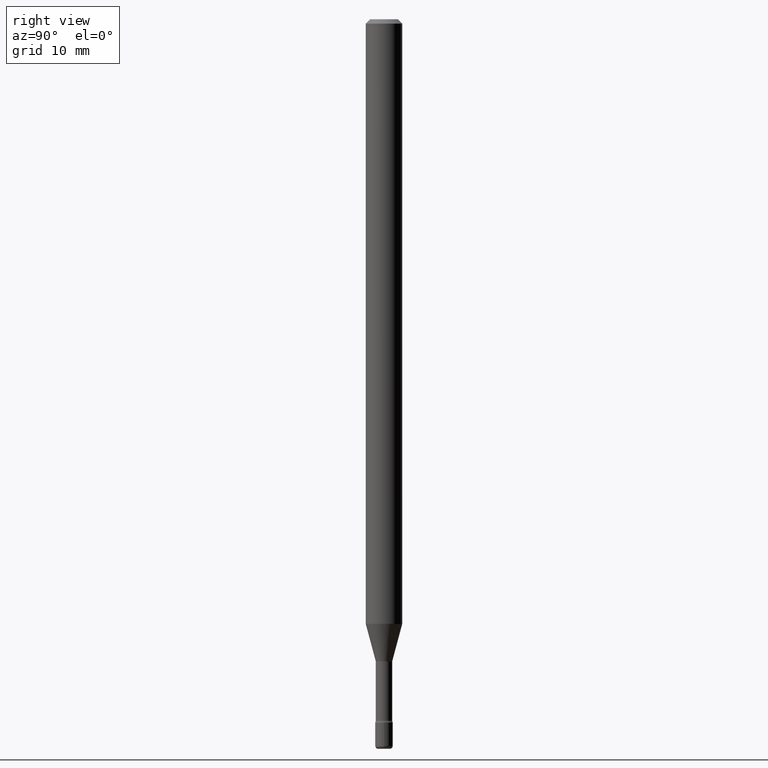
[diagram: clean part render]
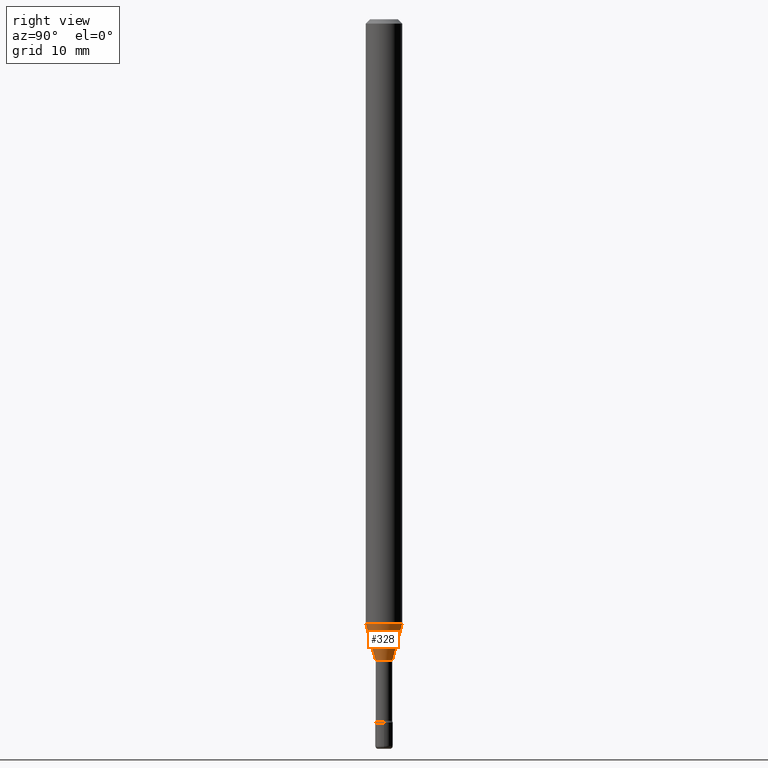
[diagram: same view with one face highlighted and labeled with its STEP entity id]
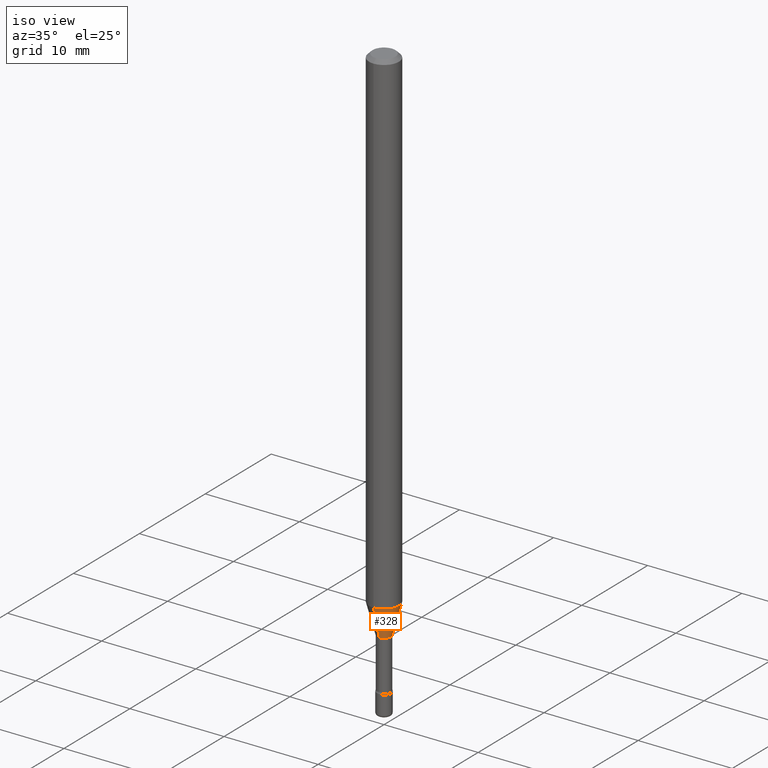
[diagram: same view with one face highlighted and labeled with its STEP entity id]
A machine part, right view. The second image highlights one B-rep face of the part: STEP entity #328.
A second angle (iso view) of the same face is appended — the face is thin or edge-on in the first view.
In plain terms, the highlighted conical surface has half-angle 15 deg.
Its self-contained STEP definition (entity closure, byte-faithful):
#2 = DIRECTION ( 'NONE',  ( -1.807323732225328562E-15, -0.2588190451025179639, 0.9659258262890690894 ) ) ;
#7 = CARTESIAN_POINT ( 'NONE',  ( -2.004886277601455257E-16, -0.02871111260567165910, -2.198092501787273001 ) ) ;
#9 = CONICAL_SURFACE ( 'NONE', #332, 0.02871111260566398468, 0.2617993877991500740 ) ;
#13 = VERTEX_POINT ( 'NONE', #97 ) ;
#39 = EDGE_CURVE ( 'NONE', #13, #548, #496, .T. ) ;
#49 = ORIENTED_EDGE ( 'NONE', *, *, #358, .T. ) ;
#57 = AXIS2_PLACEMENT_3D ( 'NONE', #422, #201, #166 ) ;
#63 = CARTESIAN_POINT ( 'NONE',  ( -4.364351673553412809E-16, -0.06250000000000725808, -2.071990657300387451 ) ) ;
#95 = VECTOR ( 'NONE', #2, 39.37007874015748854 ) ;
#97 = CARTESIAN_POINT ( 'NONE',  ( -2.004886277601455257E-16, -0.02871111260567165910, -2.198092501787273001 ) ) ;
#129 = DIRECTION ( 'NONE',  ( -2.445494318149261734E-29, 3.491444804258467311E-15, 1.000000000000000000 ) ) ;
#135 = CARTESIAN_POINT ( 'NONE',  ( 4.440892098501130047E-16, 0.06249999999999274886, -2.071990657300387895 ) ) ;
#147 = CARTESIAN_POINT ( 'NONE',  ( 3.240469674128075134E-16, 0.02871111260565631026, -2.198092501787273001 ) ) ;
#149 = AXIS2_PLACEMENT_3D ( 'NONE', #477, #433, #214 ) ;
#166 = DIRECTION ( 'NONE',  ( -6.982962677686265922E-15, -1.000000000000000000, 4.370956789862821150E-15 ) ) ;
#180 = LINE ( 'NONE', #475, #411 ) ;
#196 = ORIENTED_EDGE ( 'NONE', *, *, #342, .F. ) ;
#201 = DIRECTION ( 'NONE',  ( -2.445494318149261734E-29, 3.491444804258467311E-15, 1.000000000000000000 ) ) ;
#214 = DIRECTION ( 'NONE',  ( -6.982962677686265133E-15, -1.000000000000000000, 0.000000000000000000 ) ) ;
#260 = ORIENTED_EDGE ( 'NONE', *, *, #39, .F. ) ;
#303 = DIRECTION ( 'NONE',  ( 1.839019923739598738E-15, 0.2588190451025247363, 0.9659258262890673130 ) ) ;
#328 = ADVANCED_FACE ( 'NONE', ( #336 ), #9, .T. ) ;
#332 = AXIS2_PLACEMENT_3D ( 'NONE', #468, #129, #417 ) ;
#336 = FACE_OUTER_BOUND ( 'NONE', #455, .T. ) ;
#342 = EDGE_CURVE ( 'NONE', #548, #515, #517, .T. ) ;
#358 = EDGE_CURVE ( 'NONE', #552, #515, #180, .T. ) ;
#374 = ORIENTED_EDGE ( 'NONE', *, *, #504, .T. ) ;
#411 = VECTOR ( 'NONE', #303, 39.37007874015748854 ) ;
#417 = DIRECTION ( 'NONE',  ( -6.982962677686265133E-15, -1.000000000000000000, 0.000000000000000000 ) ) ;
#422 = CARTESIAN_POINT ( 'NONE',  ( 5.067041379686452960E-29, -7.234241014903525863E-15, -2.071990657300387895 ) ) ;
#433 = DIRECTION ( 'NONE',  ( -2.445494318149261734E-29, 3.491444804258467311E-15, 1.000000000000000000 ) ) ;
#445 = CIRCLE ( 'NONE', #149, 0.02871111260566398468 ) ;
#455 = EDGE_LOOP ( 'NONE', ( #374, #49, #196, #260 ) ) ;
#468 = CARTESIAN_POINT ( 'NONE',  ( 5.375422723887272689E-29, -7.674518644644670387E-15, -2.198092501787273001 ) ) ;
#475 = CARTESIAN_POINT ( 'NONE',  ( 2.040047249755015784E-16, 0.02871111260565631026, -2.198092501787273001 ) ) ;
#477 = CARTESIAN_POINT ( 'NONE',  ( 5.375422723887272689E-29, -7.674518644644670387E-15, -2.198092501787273001 ) ) ;
#496 = LINE ( 'NONE', #7, #95 ) ;
#504 = EDGE_CURVE ( 'NONE', #13, #552, #445, .T. ) ;
#515 = VERTEX_POINT ( 'NONE', #135 ) ;
#517 = CIRCLE ( 'NONE', #57, 0.06250000000000000000 ) ;
#548 = VERTEX_POINT ( 'NONE', #63 ) ;
#552 = VERTEX_POINT ( 'NONE', #147 ) ;